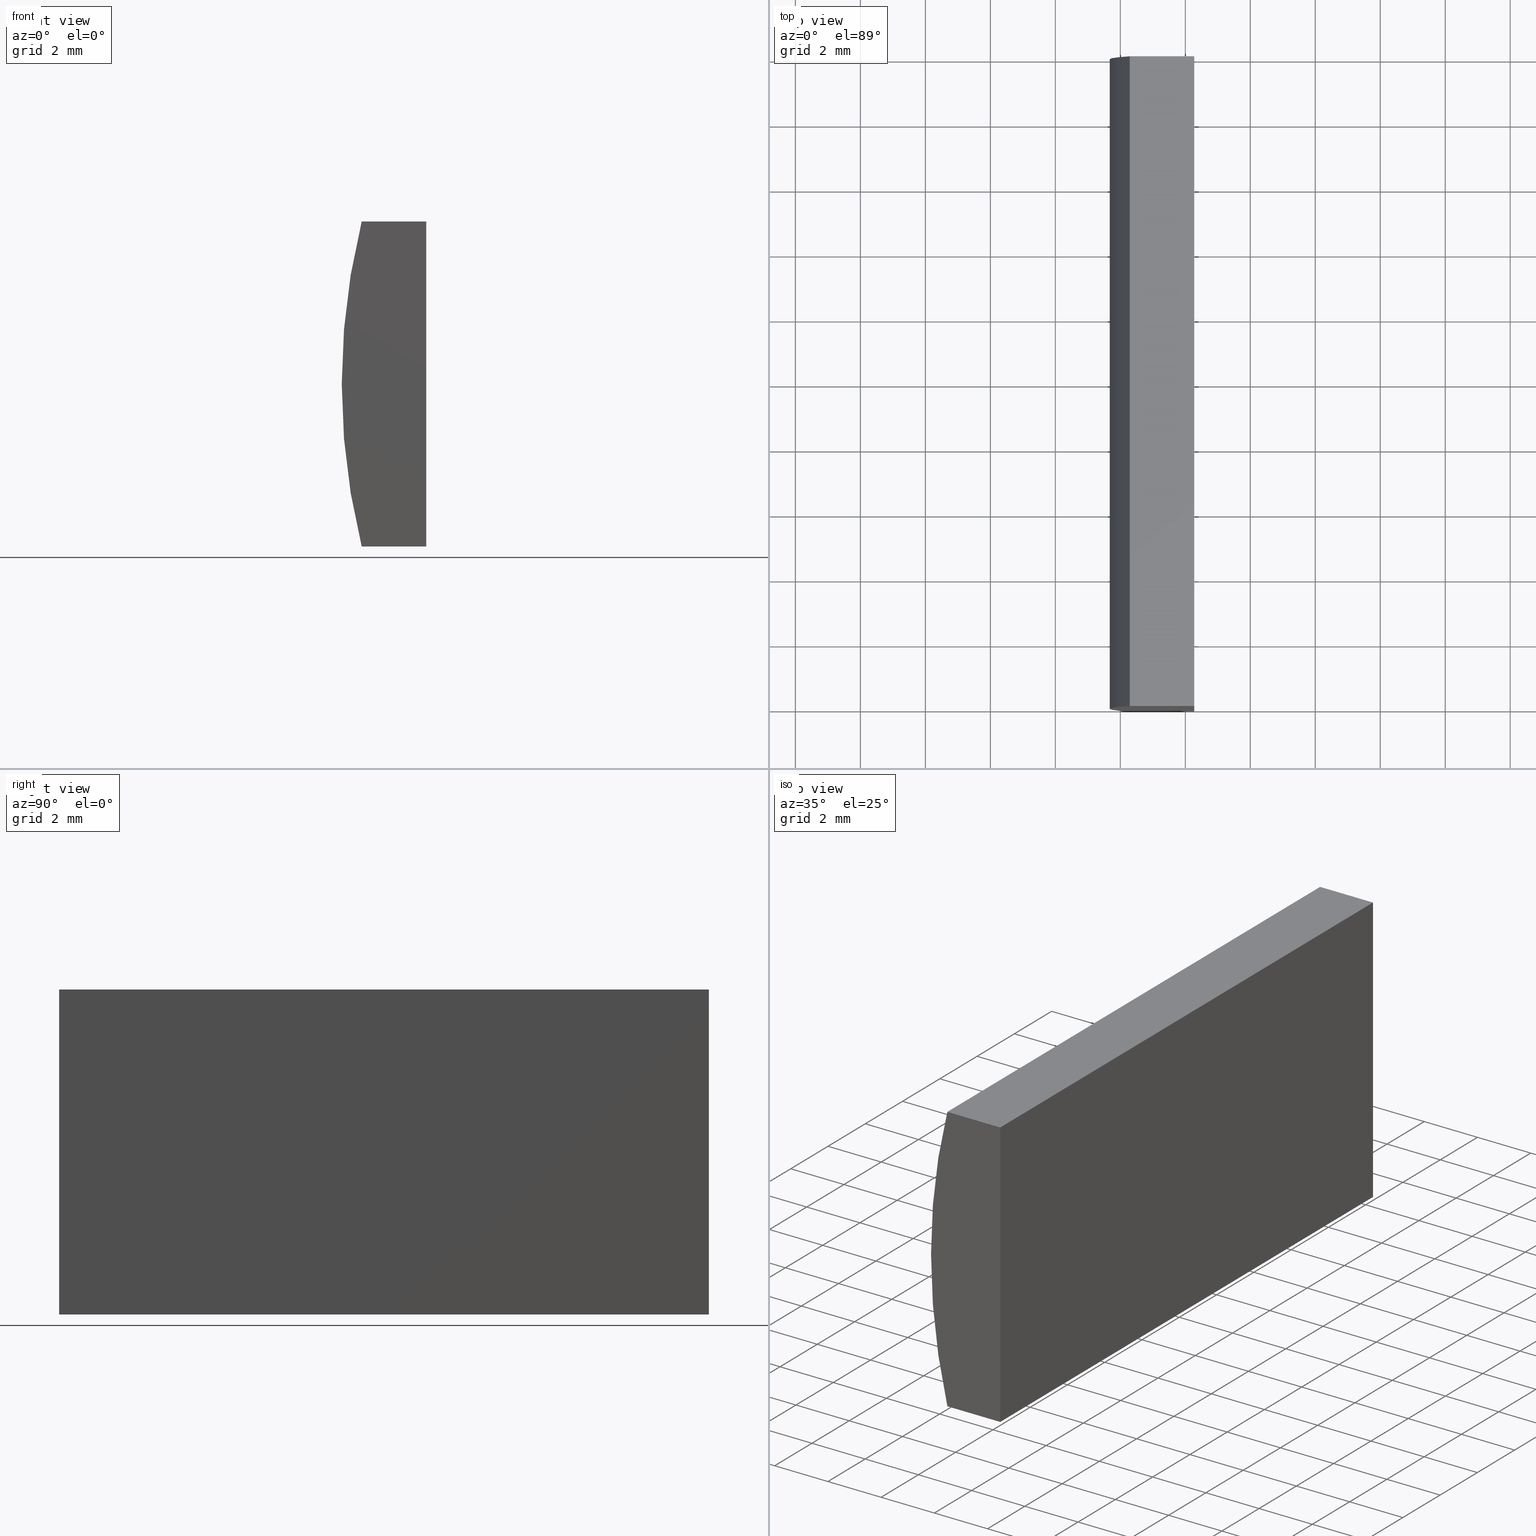
[diagram: canonical four-view strip — front | top / right | iso, engineering-drawing reading convention]
A machine part, canonical four-view strip (front | top / right | iso — engineering-drawing reading convention). The complete STEP part file that produces these views, byte-faithful:
ISO-10303-21;
HEADER;
FILE_DESCRIPTION (( 'STEP AP214' ),
    '1' );
FILE_NAME ('155028.STEP',
    '2019-06-17T06:13:01',
    ( 'user' ),
    ( '΢���й�' ),
    'SwSTEP 2.0',
    'SolidWorks 2016',
    '' );
FILE_SCHEMA (( 'AUTOMOTIVE_DESIGN' ));
ENDSEC;

DATA;
#1 = LINE ( 'NONE', #3, #178 ) ;
#2 = UNCERTAINTY_MEASURE_WITH_UNIT (LENGTH_MEASURE( 1.000000000000000100E-005 ), #99, 'distance_accuracy_value', 'NONE');
#3 = CARTESIAN_POINT ( 'NONE',  ( -15.71124527637792300, 0.0000000000000000000, 5.000000000000000000 ) ) ;
#4 = EDGE_LOOP ( 'NONE', ( #119, #135, #52, #33 ) ) ;
#5 = CARTESIAN_POINT ( 'NONE',  ( -15.71124527637792000, 20.00000000000000000, -5.000000000000000000 ) ) ;
#6 = CARTESIAN_POINT ( 'NONE',  ( -15.71124527637792000, 20.00000000000000000, -5.000000000000000000 ) ) ;
#7 = VECTOR ( 'NONE', #35, 1000.000000000000000 ) ;
#8 = ORIENTED_EDGE ( 'NONE', *, *, #74, .T. ) ;
#9 = CARTESIAN_POINT ( 'NONE',  ( -15.71124527637792000, 0.0000000000000000000, -5.000000000000000000 ) ) ;
#10 = DIRECTION ( 'NONE',  ( 0.0000000000000000000, 1.000000000000000000, 0.0000000000000000000 ) ) ;
#11 = VECTOR ( 'NONE', #164, 1000.000000000000000 ) ;
#12 = VECTOR ( 'NONE', #42, 1000.000000000000000 ) ;
#13 = DIRECTION ( 'NONE',  ( -0.0000000000000000000, -1.000000000000000000, -0.0000000000000000000 ) ) ;
#14 = ORIENTED_EDGE ( 'NONE', *, *, #152, .F. ) ;
#15 = AXIS2_PLACEMENT_3D ( 'NONE', #124, #10, #30 ) ;
#16 = CARTESIAN_POINT ( 'NONE',  ( 0.0000000000000000000, 0.0000000000000000000, 0.0000000000000000000 ) ) ;
#17 = CLOSED_SHELL ( 'NONE', ( #112, #25, #201, #98, #20, #39 ) ) ;
#18 = FILL_AREA_STYLE ('',( #63 ) ) ;
#19 = VECTOR ( 'NONE', #204, 1000.000000000000000 ) ;
#20 = ADVANCED_FACE ( 'NONE', ( #72 ), #47, .T. ) ;
#21 = ORIENTED_EDGE ( 'NONE', *, *, #129, .F. ) ;
#22 = SURFACE_STYLE_FILL_AREA ( #202 ) ;
#23 = PRODUCT_DEFINITION_SHAPE ( 'NONE', 'NONE',  #46 ) ;
#24 = LINE ( 'NONE', #6, #157 ) ;
#25 = ADVANCED_FACE ( 'NONE', ( #128 ), #88, .F. ) ;
#26 = EDGE_LOOP ( 'NONE', ( #198, #188, #58, #158 ) ) ;
#27 = UNCERTAINTY_MEASURE_WITH_UNIT (LENGTH_MEASURE( 1.000000000000000100E-005 ), #169, 'distance_accuracy_value', 'NONE');
#28 =( NAMED_UNIT ( * ) SI_UNIT ( $, .STERADIAN. ) SOLID_ANGLE_UNIT ( ) );
#29 = FACE_OUTER_BOUND ( 'NONE', #105, .T. ) ;
#30 = DIRECTION ( 'NONE',  ( 0.0000000000000000000, 0.0000000000000000000, 1.000000000000000000 ) ) ;
#31 = PRESENTATION_STYLE_ASSIGNMENT (( #90 ) ) ;
#32 = VERTEX_POINT ( 'NONE', #183 ) ;
#33 = ORIENTED_EDGE ( 'NONE', *, *, #115, .T. ) ;
#34 = APPLICATION_CONTEXT ( 'automotive_design' ) ;
#35 = DIRECTION ( 'NONE',  ( -3.469446951953616700E-016, -0.0000000000000000000, -1.000000000000000000 ) ) ;
#36 = FACE_OUTER_BOUND ( 'NONE', #91, .T. ) ;
#37 = ORIENTED_EDGE ( 'NONE', *, *, #147, .F. ) ;
#38 = DIRECTION ( 'NONE',  ( 0.0000000000000000000, 1.000000000000000000, 0.0000000000000000000 ) ) ;
#39 = ADVANCED_FACE ( 'NONE', ( #29 ), #197, .F. ) ;
#40 =( NAMED_UNIT ( * ) PLANE_ANGLE_UNIT ( ) SI_UNIT ( $, .RADIAN. ) );
#41 = LINE ( 'NONE', #126, #11 ) ;
#42 = DIRECTION ( 'NONE',  ( -0.0000000000000000000, -1.000000000000000000, -0.0000000000000000000 ) ) ;
#43 = ORIENTED_EDGE ( 'NONE', *, *, #121, .T. ) ;
#44 = LINE ( 'NONE', #80, #187 ) ;
#45 = DIRECTION ( 'NONE',  ( -1.000000000000000000, -0.0000000000000000000, -3.493113474755377600E-015 ) ) ;
#46 = PRODUCT_DEFINITION ( 'δ֪', '', #153, #84 ) ;
#47 = PLANE ( 'NONE',  #94 ) ;
#48 = CARTESIAN_POINT ( 'NONE',  ( -15.71124527637792300, 20.00000000000000000, 5.000000000000000000 ) ) ;
#49 = VERTEX_POINT ( 'NONE', #148 ) ;
#50 = CARTESIAN_POINT ( 'NONE',  ( -15.71124527637792300, 20.00000000000000000, 5.000000000000000000 ) ) ;
#51 = DIRECTION ( 'NONE',  ( 1.000000000000000000, 0.0000000000000000000, 0.0000000000000000000 ) ) ;
#52 = ORIENTED_EDGE ( 'NONE', *, *, #74, .F. ) ;
#53 = LINE ( 'NONE', #103, #7 ) ;
#54 = ORIENTED_EDGE ( 'NONE', *, *, #152, .T. ) ;
#55 = VERTEX_POINT ( 'NONE', #176 ) ;
#56 =( NAMED_UNIT ( * ) PLANE_ANGLE_UNIT ( ) SI_UNIT ( $, .RADIAN. ) );
#57 =( GEOMETRIC_REPRESENTATION_CONTEXT ( 3 ) GLOBAL_UNCERTAINTY_ASSIGNED_CONTEXT ( ( #2 ) ) GLOBAL_UNIT_ASSIGNED_CONTEXT ( ( #99, #56, #149 ) ) REPRESENTATION_CONTEXT ( 'NONE', 'WORKASPACE' ) );
#58 = ORIENTED_EDGE ( 'NONE', *, *, #121, .F. ) ;
#59 =( NAMED_UNIT ( * ) SI_UNIT ( $, .STERADIAN. ) SOLID_ANGLE_UNIT ( ) );
#60 = CARTESIAN_POINT ( 'NONE',  ( 4.355204334851265500, 0.0000000000000000000, 4.286263797015675000E-017 ) ) ;
#61 = CARTESIAN_POINT ( 'NONE',  ( -13.72479566514874000, 20.00000000000000000, -4.999999999999992900 ) ) ;
#62 = SURFACE_SIDE_STYLE ('',( #190 ) ) ;
#63 = FILL_AREA_STYLE_COLOUR ( '', #92 ) ;
#64 = CARTESIAN_POINT ( 'NONE',  ( -13.72479566514874000, 20.00000000000000000, -4.999999999999992900 ) ) ;
#65 = MECHANICAL_DESIGN_GEOMETRIC_PRESENTATION_REPRESENTATION (  '', ( #81 ), #196 ) ;
#66 = EDGE_CURVE ( 'NONE', #55, #49, #93, .T. ) ;
#67 = LINE ( 'NONE', #127, #19 ) ;
#68 = LINE ( 'NONE', #78, #97 ) ;
#69 = DIRECTION ( 'NONE',  ( 0.0000000000000000000, 0.0000000000000000000, -1.000000000000000000 ) ) ;
#70 = CARTESIAN_POINT ( 'NONE',  ( -15.71124527637792000, 20.00000000000000000, -5.000000000000000000 ) ) ;
#71 = LINE ( 'NONE', #61, #12 ) ;
#72 = FACE_OUTER_BOUND ( 'NONE', #82, .T. ) ;
#73 = CIRCLE ( 'NONE', #116, 20.68000000000000000 ) ;
#74 = EDGE_CURVE ( 'NONE', #114, #77, #68, .T. ) ;
#75 = DIRECTION ( 'NONE',  ( 3.469446951953616700E-016, 0.0000000000000000000, 1.000000000000000000 ) ) ;
#76 = COLOUR_RGB ( '',1.000000000000000000, 1.000000000000000000, 1.000000000000000000 ) ;
#77 = VERTEX_POINT ( 'NONE', #86 ) ;
#78 = CARTESIAN_POINT ( 'NONE',  ( -15.71124527637792300, 20.00000000000000000, 5.000000000000000000 ) ) ;
#79 = CYLINDRICAL_SURFACE ( 'NONE', #104, 20.68000000000000000 ) ;
#80 = CARTESIAN_POINT ( 'NONE',  ( -13.72479566514874000, 20.00000000000000000, -4.999999999999992900 ) ) ;
#81 = STYLED_ITEM ( 'NONE', ( #31 ), #199 ) ;
#82 = EDGE_LOOP ( 'NONE', ( #54, #8, #125, #43 ) ) ;
#83 = DIRECTION ( 'NONE',  ( 1.000000000000000000, 0.0000000000000000000, 0.0000000000000000000 ) ) ;
#84 = PRODUCT_DEFINITION_CONTEXT ( 'detailed design', #34, 'design' ) ;
#85 = PRODUCT_CONTEXT ( 'NONE', #117, 'mechanical' ) ;
#86 = CARTESIAN_POINT ( 'NONE',  ( -13.72479566514873600, 20.00000000000000000, 5.000000000000000000 ) ) ;
#87 = EDGE_CURVE ( 'NONE', #32, #102, #1, .T. ) ;
#88 = PLANE ( 'NONE',  #138 ) ;
#89 =( NAMED_UNIT ( * ) PLANE_ANGLE_UNIT ( ) SI_UNIT ( $, .RADIAN. ) );
#90 = SURFACE_STYLE_USAGE ( .BOTH. , #62 ) ;
#91 = EDGE_LOOP ( 'NONE', ( #151, #21, #136, #203 ) ) ;
#92 = COLOUR_RGB ( '',1.000000000000000000, 1.000000000000000000, 1.000000000000000000 ) ;
#93 = LINE ( 'NONE', #9, #144 ) ;
#94 = AXIS2_PLACEMENT_3D ( 'NONE', #140, #118, #142 ) ;
#95 = SURFACE_SIDE_STYLE ('',( #22 ) ) ;
#96 = PRESENTATION_LAYER_ASSIGNMENT (  '', '', ( #81 ) ) ;
#97 = VECTOR ( 'NONE', #83, 1000.000000000000000 ) ;
#98 = ADVANCED_FACE ( 'NONE', ( #109 ), #175, .F. ) ;
#99 =( LENGTH_UNIT ( ) NAMED_UNIT ( * ) SI_UNIT ( .MILLI., .METRE. ) );
#100 = DIRECTION ( 'NONE',  ( 0.0000000000000000000, 0.0000000000000000000, 1.000000000000000000 ) ) ;
#101 = CIRCLE ( 'NONE', #15, 20.68000000000000000 ) ;
#102 = VERTEX_POINT ( 'NONE', #179 ) ;
#103 = CARTESIAN_POINT ( 'NONE',  ( -13.72479566514874000, 0.0000000000000000000, -4.999999999999992900 ) ) ;
#104 = AXIS2_PLACEMENT_3D ( 'NONE', #163, #113, #69 ) ;
#105 = EDGE_LOOP ( 'NONE', ( #167, #162, #37, #171 ) ) ;
#106 = ADVANCED_BREP_SHAPE_REPRESENTATION ( '155028', ( #199, #172 ), #57 ) ;
#107 =( LENGTH_UNIT ( ) NAMED_UNIT ( * ) SI_UNIT ( .MILLI., .METRE. ) );
#108 = MECHANICAL_DESIGN_GEOMETRIC_PRESENTATION_REPRESENTATION (  '', ( #146 ), #184 ) ;
#109 = FACE_OUTER_BOUND ( 'NONE', #26, .T. ) ;
#110 = PRESENTATION_STYLE_ASSIGNMENT (( #133 ) ) ;
#111 = EDGE_CURVE ( 'NONE', #186, #49, #67, .T. ) ;
#112 = ADVANCED_FACE ( 'NONE', ( #185 ), #79, .T. ) ;
#113 = DIRECTION ( 'NONE',  ( -0.0000000000000000000, -1.000000000000000000, -0.0000000000000000000 ) ) ;
#114 = VERTEX_POINT ( 'NONE', #195 ) ;
#115 = EDGE_CURVE ( 'NONE', #114, #32, #200, .T. ) ;
#116 = AXIS2_PLACEMENT_3D ( 'NONE', #60, #165, #100 ) ;
#117 = APPLICATION_CONTEXT ( 'automotive_design' ) ;
#118 = DIRECTION ( 'NONE',  ( 0.0000000000000000000, 1.000000000000000000, 0.0000000000000000000 ) ) ;
#119 = ORIENTED_EDGE ( 'NONE', *, *, #87, .T. ) ;
#120 = SHAPE_DEFINITION_REPRESENTATION ( #23, #106 ) ;
#121 = EDGE_CURVE ( 'NONE', #194, #186, #24, .T. ) ;
#122 = DIRECTION ( 'NONE',  ( -1.000000000000000000, 0.0000000000000000000, -0.0000000000000000000 ) ) ;
#123 = PLANE ( 'NONE',  #166 ) ;
#124 = CARTESIAN_POINT ( 'NONE',  ( 4.355204334851265500, 20.00000000000000000, 4.286263797015675000E-017 ) ) ;
#125 = ORIENTED_EDGE ( 'NONE', *, *, #189, .T. ) ;
#126 = CARTESIAN_POINT ( 'NONE',  ( -13.72479566514873600, 20.00000000000000000, 5.000000000000000000 ) ) ;
#127 = CARTESIAN_POINT ( 'NONE',  ( -15.71124527637792000, 20.00000000000000000, -5.000000000000000000 ) ) ;
#128 = FACE_OUTER_BOUND ( 'NONE', #4, .T. ) ;
#129 = EDGE_CURVE ( 'NONE', #194, #55, #71, .T. ) ;
#130 = EDGE_CURVE ( 'NONE', #77, #102, #41, .T. ) ;
#131 = PRESENTATION_LAYER_ASSIGNMENT (  '', '', ( #146 ) ) ;
#132 = ORIENTED_EDGE ( 'NONE', *, *, #141, .T. ) ;
#133 = SURFACE_STYLE_USAGE ( .BOTH. , #95 ) ;
#134 = PRODUCT ( '155028', '155028', '', ( #85 ) ) ;
#135 = ORIENTED_EDGE ( 'NONE', *, *, #130, .F. ) ;
#136 = ORIENTED_EDGE ( 'NONE', *, *, #189, .F. ) ;
#137 = DIRECTION ( 'NONE',  ( 0.0000000000000000000, 0.0000000000000000000, -1.000000000000000000 ) ) ;
#138 = AXIS2_PLACEMENT_3D ( 'NONE', #48, #137, #122 ) ;
#139 = PRODUCT_RELATED_PRODUCT_CATEGORY ( 'part', '', ( #134 ) ) ;
#140 = CARTESIAN_POINT ( 'NONE',  ( 4.355204334851265500, 20.00000000000000000, 4.286263797015675000E-017 ) ) ;
#141 = EDGE_CURVE ( 'NONE', #49, #32, #73, .T. ) ;
#142 = DIRECTION ( 'NONE',  ( 0.0000000000000000000, -0.0000000000000000000, 1.000000000000000000 ) ) ;
#143 = DIRECTION ( 'NONE',  ( 1.000000000000000000, 0.0000000000000000000, 0.0000000000000000000 ) ) ;
#144 = VECTOR ( 'NONE', #168, 1000.000000000000000 ) ;
#145 = AXIS2_PLACEMENT_3D ( 'NONE', #156, #38, #180 ) ;
#146 = STYLED_ITEM ( 'NONE', ( #110 ), #106 ) ;
#147 = EDGE_CURVE ( 'NONE', #102, #55, #53, .T. ) ;
#148 = CARTESIAN_POINT ( 'NONE',  ( -15.71124527637792000, 0.0000000000000000000, -5.000000000000000000 ) ) ;
#149 =( NAMED_UNIT ( * ) SI_UNIT ( $, .STERADIAN. ) SOLID_ANGLE_UNIT ( ) );
#150 = VECTOR ( 'NONE', #13, 1000.000000000000000 ) ;
#151 = ORIENTED_EDGE ( 'NONE', *, *, #147, .T. ) ;
#152 = EDGE_CURVE ( 'NONE', #186, #114, #101, .T. ) ;
#153 = PRODUCT_DEFINITION_FORMATION_WITH_SPECIFIED_SOURCE ( '�κ�', '', #134, .NOT_KNOWN. ) ;
#154 = EDGE_LOOP ( 'NONE', ( #132, #160, #14, #192 ) ) ;
#155 = CARTESIAN_POINT ( 'NONE',  ( -13.72479566514874000, 20.00000000000000000, -4.999999999999992900 ) ) ;
#156 = CARTESIAN_POINT ( 'NONE',  ( 4.355204334851265500, 0.0000000000000000000, 4.286263797015675000E-017 ) ) ;
#157 = VECTOR ( 'NONE', #45, 1000.000000000000000 ) ;
#158 = ORIENTED_EDGE ( 'NONE', *, *, #129, .T. ) ;
#159 = APPLICATION_PROTOCOL_DEFINITION ( 'draft international standard', 'automotive_design', 1998, #117 ) ;
#160 = ORIENTED_EDGE ( 'NONE', *, *, #115, .F. ) ;
#161 = UNCERTAINTY_MEASURE_WITH_UNIT (LENGTH_MEASURE( 1.000000000000000100E-005 ), #107, 'distance_accuracy_value', 'NONE');
#162 = ORIENTED_EDGE ( 'NONE', *, *, #66, .F. ) ;
#163 = CARTESIAN_POINT ( 'NONE',  ( 4.355204334851265500, 20.00000000000000000, 4.286263797015675000E-017 ) ) ;
#164 = DIRECTION ( 'NONE',  ( -0.0000000000000000000, -1.000000000000000000, -0.0000000000000000000 ) ) ;
#165 = DIRECTION ( 'NONE',  ( 0.0000000000000000000, 1.000000000000000000, 0.0000000000000000000 ) ) ;
#166 = AXIS2_PLACEMENT_3D ( 'NONE', #64, #170, #75 ) ;
#167 = ORIENTED_EDGE ( 'NONE', *, *, #141, .F. ) ;
#168 = DIRECTION ( 'NONE',  ( -1.000000000000000000, -0.0000000000000000000, -3.493113474755377600E-015 ) ) ;
#169 =( LENGTH_UNIT ( ) NAMED_UNIT ( * ) SI_UNIT ( .MILLI., .METRE. ) );
#170 = DIRECTION ( 'NONE',  ( -1.000000000000000000, 0.0000000000000000000, 3.469446951953616700E-016 ) ) ;
#171 = ORIENTED_EDGE ( 'NONE', *, *, #87, .F. ) ;
#172 = AXIS2_PLACEMENT_3D ( 'NONE', #16, #181, #143 ) ;
#173 = DIRECTION ( 'NONE',  ( 1.000000000000000000, 0.0000000000000000000, 3.493113474755377600E-015 ) ) ;
#174 = FILL_AREA_STYLE_COLOUR ( '', #76 ) ;
#175 = PLANE ( 'NONE',  #182 ) ;
#176 = CARTESIAN_POINT ( 'NONE',  ( -13.72479566514874000, 0.0000000000000000000, -4.999999999999992900 ) ) ;
#177 = APPLICATION_PROTOCOL_DEFINITION ( 'draft international standard', 'automotive_design', 1998, #34 ) ;
#178 = VECTOR ( 'NONE', #51, 1000.000000000000000 ) ;
#179 = CARTESIAN_POINT ( 'NONE',  ( -13.72479566514873600, 0.0000000000000000000, 5.000000000000000000 ) ) ;
#180 = DIRECTION ( 'NONE',  ( 0.0000000000000000000, -0.0000000000000000000, 1.000000000000000000 ) ) ;
#181 = DIRECTION ( 'NONE',  ( 0.0000000000000000000, 0.0000000000000000000, 1.000000000000000000 ) ) ;
#182 = AXIS2_PLACEMENT_3D ( 'NONE', #5, #193, #173 ) ;
#183 = CARTESIAN_POINT ( 'NONE',  ( -15.71124527637792300, 0.0000000000000000000, 5.000000000000000000 ) ) ;
#184 =( GEOMETRIC_REPRESENTATION_CONTEXT ( 3 ) GLOBAL_UNCERTAINTY_ASSIGNED_CONTEXT ( ( #27 ) ) GLOBAL_UNIT_ASSIGNED_CONTEXT ( ( #169, #40, #28 ) ) REPRESENTATION_CONTEXT ( 'NONE', 'WORKASPACE' ) );
#185 = FACE_OUTER_BOUND ( 'NONE', #154, .T. ) ;
#186 = VERTEX_POINT ( 'NONE', #70 ) ;
#187 = VECTOR ( 'NONE', #191, 1000.000000000000000 ) ;
#188 = ORIENTED_EDGE ( 'NONE', *, *, #111, .F. ) ;
#189 = EDGE_CURVE ( 'NONE', #77, #194, #44, .T. ) ;
#190 = SURFACE_STYLE_FILL_AREA ( #18 ) ;
#191 = DIRECTION ( 'NONE',  ( -3.469446951953616700E-016, -0.0000000000000000000, -1.000000000000000000 ) ) ;
#192 = ORIENTED_EDGE ( 'NONE', *, *, #111, .T. ) ;
#193 = DIRECTION ( 'NONE',  ( -3.493113474755377600E-015, 0.0000000000000000000, 1.000000000000000000 ) ) ;
#194 = VERTEX_POINT ( 'NONE', #155 ) ;
#195 = CARTESIAN_POINT ( 'NONE',  ( -15.71124527637792300, 20.00000000000000000, 5.000000000000000000 ) ) ;
#196 =( GEOMETRIC_REPRESENTATION_CONTEXT ( 3 ) GLOBAL_UNCERTAINTY_ASSIGNED_CONTEXT ( ( #161 ) ) GLOBAL_UNIT_ASSIGNED_CONTEXT ( ( #107, #89, #59 ) ) REPRESENTATION_CONTEXT ( 'NONE', 'WORKASPACE' ) );
#197 = PLANE ( 'NONE',  #145 ) ;
#198 = ORIENTED_EDGE ( 'NONE', *, *, #66, .T. ) ;
#199 = MANIFOLD_SOLID_BREP ( '͹̨-����1', #17 ) ;
#200 = LINE ( 'NONE', #50, #150 ) ;
#201 = ADVANCED_FACE ( 'NONE', ( #36 ), #123, .F. ) ;
#202 = FILL_AREA_STYLE ('',( #174 ) ) ;
#203 = ORIENTED_EDGE ( 'NONE', *, *, #130, .T. ) ;
#204 = DIRECTION ( 'NONE',  ( -0.0000000000000000000, -1.000000000000000000, -0.0000000000000000000 ) ) ;
ENDSEC;
END-ISO-10303-21;
